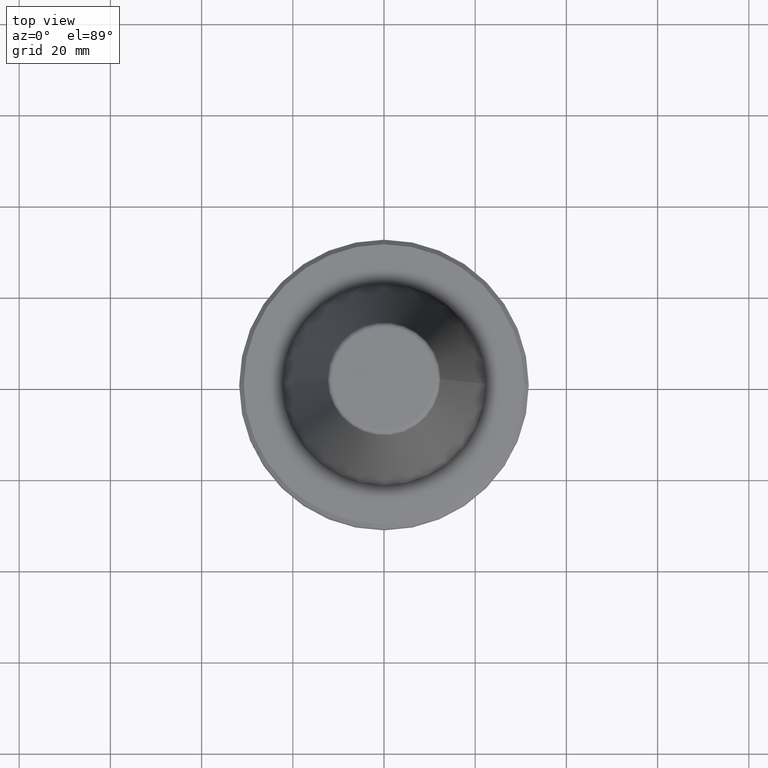
[diagram: clean part render]
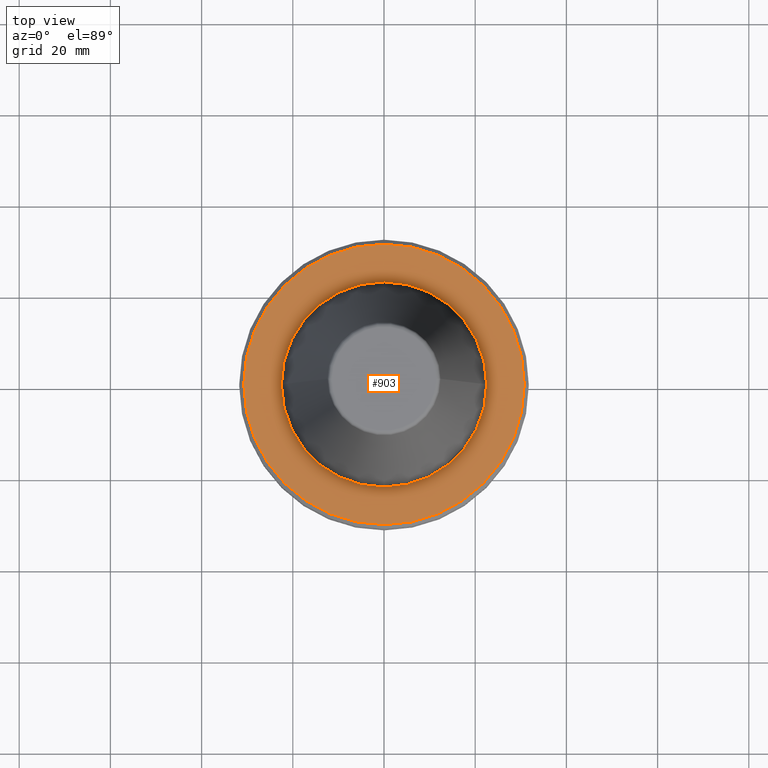
[diagram: same view with one face highlighted and labeled with its STEP entity id]
A machine part, top view. The second image highlights one B-rep face of the part: STEP entity #903.
In plain terms, the highlighted planar face has unit normal (0, 0, 1).
Its self-contained STEP definition (entity closure, byte-faithful):
#15 = PLANE ( 'NONE',  #1069 ) ;
#42 = CIRCLE ( 'NONE', #1166, 22.50000000000311900 ) ;
#71 = CIRCLE ( 'NONE', #537, 22.50000000000311900 ) ;
#99 = EDGE_LOOP ( 'NONE', ( #877, #368 ) ) ;
#115 = DIRECTION ( 'NONE',  ( 0.0000000000000000000, 0.0000000000000000000, 1.000000000000000000 ) ) ;
#147 = VERTEX_POINT ( 'NONE', #1249 ) ;
#160 = DIRECTION ( 'NONE',  ( -0.0000000000000000000, -0.0000000000000000000, -1.000000000000000000 ) ) ;
#219 = VERTEX_POINT ( 'NONE', #1003 ) ;
#223 = CARTESIAN_POINT ( 'NONE',  ( -30.74999999999987600, 0.0000000000000000000, -3.199999999993430300 ) ) ;
#247 = CARTESIAN_POINT ( 'NONE',  ( 0.0000000000000000000, 0.0000000000000000000, -3.199999999993430300 ) ) ;
#263 = CARTESIAN_POINT ( 'NONE',  ( -22.50000000000311900, 0.0000000000000000000, -3.199999999993427200 ) ) ;
#305 = AXIS2_PLACEMENT_3D ( 'NONE', #247, #809, #728 ) ;
#368 = ORIENTED_EDGE ( 'NONE', *, *, #703, .F. ) ;
#429 = ORIENTED_EDGE ( 'NONE', *, *, #497, .T. ) ;
#495 = CARTESIAN_POINT ( 'NONE',  ( 0.0000000000000000000, 30.74999999999987600, -3.199999999993424100 ) ) ;
#497 = EDGE_CURVE ( 'NONE', #147, #740, #42, .T. ) ;
#537 = AXIS2_PLACEMENT_3D ( 'NONE', #564, #1239, #662 ) ;
#564 = CARTESIAN_POINT ( 'NONE',  ( 0.0000000000000000000, 0.0000000000000000000, -3.199999999993430300 ) ) ;
#568 = FACE_BOUND ( 'NONE', #710, .T. ) ;
#573 = EDGE_CURVE ( 'NONE', #583, #219, #996, .T. ) ;
#583 = VERTEX_POINT ( 'NONE', #223 ) ;
#662 = DIRECTION ( 'NONE',  ( -1.000000000000000000, 0.0000000000000000000, 0.0000000000000000000 ) ) ;
#668 = DIRECTION ( 'NONE',  ( -1.000000000000000000, 0.0000000000000000000, 0.0000000000000000000 ) ) ;
#703 = EDGE_CURVE ( 'NONE', #219, #583, #1063, .T. ) ;
#710 = EDGE_LOOP ( 'NONE', ( #1132, #429 ) ) ;
#728 = DIRECTION ( 'NONE',  ( -1.000000000000000000, 0.0000000000000000000, 0.0000000000000000000 ) ) ;
#736 = CARTESIAN_POINT ( 'NONE',  ( 0.0000000000000000000, 0.0000000000000000000, -3.199999999993430300 ) ) ;
#740 = VERTEX_POINT ( 'NONE', #263 ) ;
#793 = DIRECTION ( 'NONE',  ( 1.000000000000000000, 0.0000000000000000000, -0.0000000000000000000 ) ) ;
#809 = DIRECTION ( 'NONE',  ( -0.0000000000000000000, -0.0000000000000000000, -1.000000000000000000 ) ) ;
#840 = DIRECTION ( 'NONE',  ( -1.000000000000000000, 0.0000000000000000000, 0.0000000000000000000 ) ) ;
#877 = ORIENTED_EDGE ( 'NONE', *, *, #573, .F. ) ;
#903 = ADVANCED_FACE ( 'NONE', ( #568, #1086 ), #15, .T. ) ;
#996 = CIRCLE ( 'NONE', #305, 30.74999999999987600 ) ;
#1003 = CARTESIAN_POINT ( 'NONE',  ( 30.74999999999987600, 3.827021247335470200E-015, -3.199999999993430300 ) ) ;
#1015 = AXIS2_PLACEMENT_3D ( 'NONE', #736, #160, #840 ) ;
#1063 = CIRCLE ( 'NONE', #1015, 30.74999999999987600 ) ;
#1069 = AXIS2_PLACEMENT_3D ( 'NONE', #495, #115, #793 ) ;
#1086 = FACE_OUTER_BOUND ( 'NONE', #99, .T. ) ;
#1132 = ORIENTED_EDGE ( 'NONE', *, *, #1173, .T. ) ;
#1154 = CARTESIAN_POINT ( 'NONE',  ( 0.0000000000000000000, 0.0000000000000000000, -3.199999999993430300 ) ) ;
#1166 = AXIS2_PLACEMENT_3D ( 'NONE', #1154, #1172, #668 ) ;
#1172 = DIRECTION ( 'NONE',  ( -0.0000000000000000000, -0.0000000000000000000, -1.000000000000000000 ) ) ;
#1173 = EDGE_CURVE ( 'NONE', #740, #147, #71, .T. ) ;
#1239 = DIRECTION ( 'NONE',  ( -0.0000000000000000000, -0.0000000000000000000, -1.000000000000000000 ) ) ;
#1249 = CARTESIAN_POINT ( 'NONE',  ( 22.50000000000311900, 2.755455298081926600E-015, -3.199999999993427200 ) ) ;